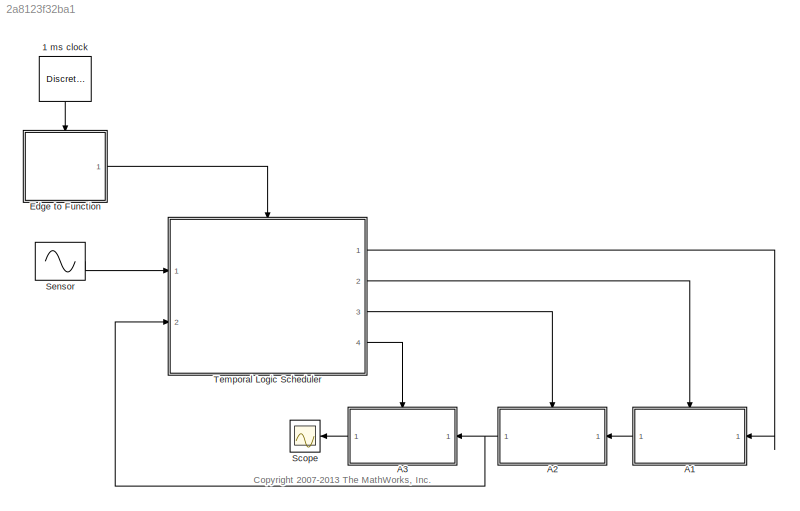
MODEL slx_2a8123f32ba1
KIND model
CONFIG AbsTol = auto
CONFIG EnableMultiTasking = on
CONFIG FixedStep = auto
CONFIG MaxStep = auto
CONFIG MinStep = auto
CONFIG RelTol = 1e-3
CONFIG SampleTimeConstraint = Unconstrained
CONFIG Solver = FixedStepDiscrete
CONFIG SolverName = FixedStepDiscrete
CONFIG StartTime = 0.0
CONFIG StopTime = 5
WORKSPACE source: MAT-file member
WORKSPACE deltat = 0.001
BLOCK [DiscretePulseGenerator] 1 ms clock
  Period = 0.001
  Ports = [0, 1]
  PulseType = Time based
  PulseWidth = 10
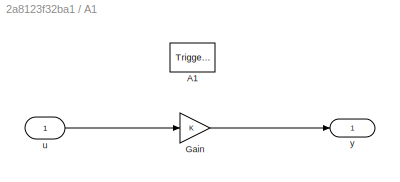
BLOCK [SubSystem] A1
  Ports = [1, 1, 0, 1]
  RequestExecContextInheritance = off
  TreatAsAtomicUnit = on
  Variant = off
BLOCK [TriggerPort] A1/A1
  Ports = []
  StatesWhenEnabling = held
  TriggerType = function-call
  VariantControl = (inherit)
BLOCK [Gain] A1/Gain
  OutDataTypeStr = Inherit: Inherit via internal rule
  ParamDataTypeStr = Inherit: Inherit via internal rule
  SaturateOnIntegerOverflow = off
BLOCK [Inport] A1/u
  IconDisplay = Port number
BLOCK [Outport] A1/y
  IconDisplay = Port number
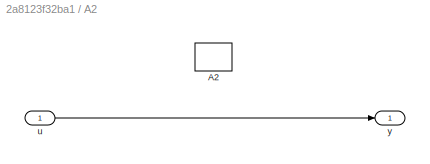
BLOCK [SubSystem] A2
  Ports = [1, 1, 0, 1]
  RequestExecContextInheritance = off
  TreatAsAtomicUnit = on
  Variant = off
BLOCK [TriggerPort] A2/A2
  Ports = []
  StatesWhenEnabling = held
  TriggerType = function-call
  VariantControl = (inherit)
BLOCK [Inport] A2/u
  IconDisplay = Port number
BLOCK [Outport] A2/y
  IconDisplay = Port number
  InitialOutput = 0
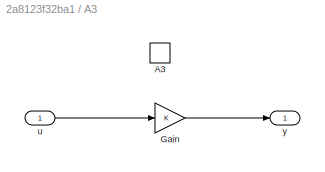
BLOCK [SubSystem] A3
  Ports = [1, 1, 0, 1]
  RequestExecContextInheritance = off
  TreatAsAtomicUnit = on
  Variant = off
BLOCK [TriggerPort] A3/A3
  Ports = []
  StatesWhenEnabling = held
  TriggerType = function-call
  VariantControl = (inherit)
BLOCK [Gain] A3/Gain
  OutDataTypeStr = Inherit: Inherit via internal rule
  ParamDataTypeStr = Inherit: Inherit via internal rule
  SaturateOnIntegerOverflow = off
BLOCK [Inport] A3/u
  IconDisplay = Port number
BLOCK [Outport] A3/y
  IconDisplay = Port number
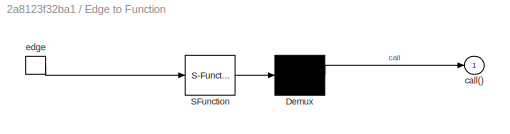
BLOCK [SubSystem] Edge to Function 
  ErrorFcn = Stateflow.Translate.translate
  PermitHierarchicalResolution = ExplicitOnly
  Ports = [0, 1, 0, 1]
  RequestExecContextInheritance = off
  SFBlockType = Chart
  TreatAsAtomicUnit = on
  Variant = off
BLOCK [Demux] Edge to Function / Demux 
  Outputs = 1
  Ports = [1, 1]
BLOCK [S-Function] Edge to Function / SFunction 
  EnableBusSupport = off
  FunctionName = sf_sfun
  PortCounts = [1 1]
  Ports = [1, 1]
  SFcnIsStateOwnerBlock = off
  SFunctionDeploymentMode = off
  Tag = Stateflow S-Function sf_temporal_logic_scheduler 2
BLOCK [Outport] Edge to Function /call()
  IconDisplay = Port number
BLOCK [TriggerPort] Edge to Function /edge
  Ports = [0, 1]
  ShowOutputPort = on
  VariantControl = (inherit)
BLOCK [Scope] Scope
  NumInputPorts = 1
  Ports = [1]
  ScopeSpecificationString = Simulink.scopes.TimeScopeBlockCfg('CurrentConfiguration', extmgr.ConfigurationSet(extmgr.Configuration('Core','General UI',true),extmgr.Configuration('Core','Source UI',true),extmgr.Configuration('Sources','WiredSimulink',true,'DataLoggingSaveFormat','StructureWithTime','DataLoggingLimitDataPoints',true,'DataLoggingDecimation','1'),extmgr.Configuration('Visuals','Time Domain',true,'SerializedDispl...<+1729ch>
BLOCK [Sin] Sensor
  Frequency = 40
  Phase = -pi/8
  Ports = [0, 1]
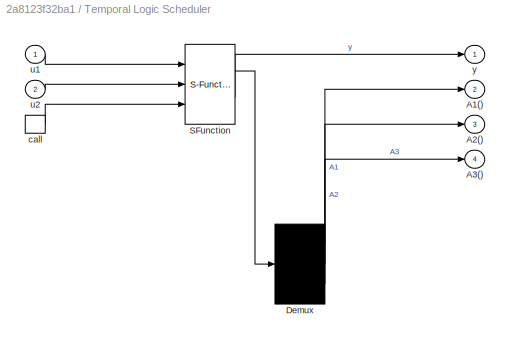
BLOCK [SubSystem] Temporal Logic Scheduler
  ErrorFcn = Stateflow.Translate.translate
  PermitHierarchicalResolution = ExplicitOnly
  Ports = [2, 4, 0, 1]
  RequestExecContextInheritance = off
  SFBlockType = Chart
  TreatAsAtomicUnit = on
  Variant = off
BLOCK [Demux] Temporal Logic Scheduler/ Demux 
  Outputs = 3
  Ports = [1, 3]
BLOCK [S-Function] Temporal Logic Scheduler/ SFunction 
  EnableBusSupport = off
  FunctionName = sf_sfun
  PortCounts = [3 2]
  Ports = [3, 2]
  SFcnIsStateOwnerBlock = off
  SFunctionDeploymentMode = off
  Tag = Stateflow S-Function sf_temporal_logic_scheduler 1
BLOCK [Outport] Temporal Logic Scheduler/A1()
  IconDisplay = Port number
  Port = 2
BLOCK [Outport] Temporal Logic Scheduler/A2()
  IconDisplay = Port number
  Port = 3
BLOCK [Outport] Temporal Logic Scheduler/A3()
  IconDisplay = Port number
  Port = 4
BLOCK [TriggerPort] Temporal Logic Scheduler/call
  Ports = [0, 1]
  ShowOutputPort = on
  TriggerType = function-call
  VariantControl = (inherit)
BLOCK [Inport] Temporal Logic Scheduler/u1
  IconDisplay = Port number
BLOCK [Inport] Temporal Logic Scheduler/u2
  IconDisplay = Port number
  Port = 2
BLOCK [Outport] Temporal Logic Scheduler/y
  IconDisplay = Port number
ANNOTATION (root): <copyright redacted>
LINE 1 ms clock:1 -> Edge to Function :trigger
LINE A1/Gain:1 -> A1/y:1
LINE A1/u:1 -> A1/Gain:1
LINE A1:1 -> A2:1
LINE A2/u:1 -> A2/y:1
NET A2:1 -> A3:1, Temporal Logic Scheduler:2
LINE A3/Gain:1 -> A3/y:1
LINE A3/u:1 -> A3/Gain:1
LINE A3:1 -> Scope:1
LINE Edge to Function :1 -> Temporal Logic Scheduler:trigger
LINE Sensor:1 -> Temporal Logic Scheduler:1
LINE Temporal Logic Scheduler:1 -> A1:1
LINE Temporal Logic Scheduler:2 -> A1:trigger
LINE Temporal Logic Scheduler:3 -> A2:trigger
LINE Temporal Logic Scheduler:4 -> A3:trigger
note: NET lines group one-source signal fan-out (src -> all destinations, sorted); 1:1 wires keep LINE
CHART Temporal Logic
Scheduler states=2 transitions=3
  STATE_LABEL 'FastScheduler\ndu: y = u1-u2;\non every(1,call): send(A1);\non every(2,call): send(A2);\non every(4,call): send(A3);'
  STATE_LABEL 'SlowScheduler\ndu: y = u1-u2;\non every(8,call): send(A1);\non every(16,call): send(A2);\non every(32,call): send(A3);'
CHART Edge to
Function  states=0 transitions=1
